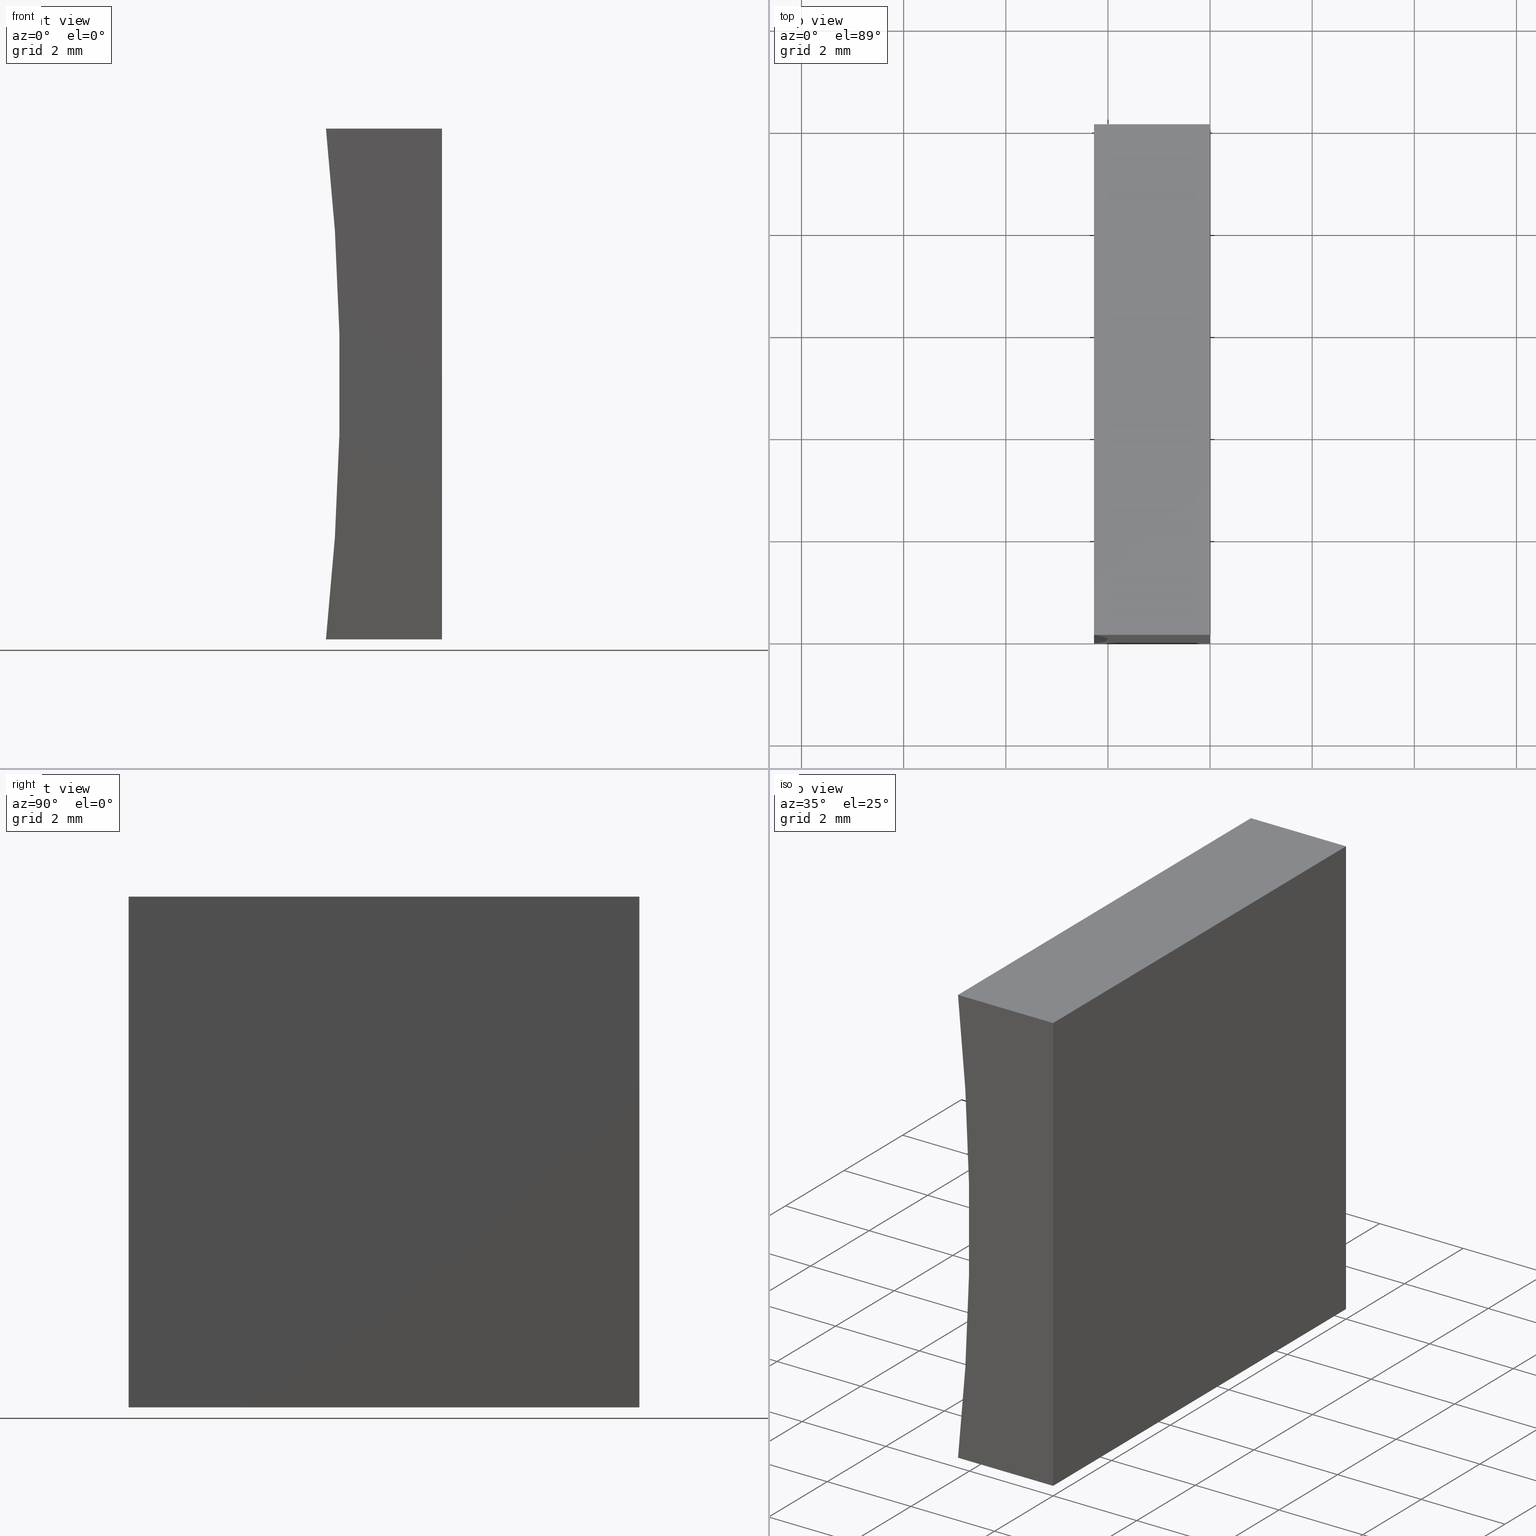
[diagram: canonical four-view strip — front | top / right | iso, engineering-drawing reading convention]
A machine part, canonical four-view strip (front | top / right | iso — engineering-drawing reading convention). The complete STEP part file that produces these views, byte-faithful:
ISO-10303-21;
HEADER;
FILE_DESCRIPTION (( 'STEP AP214' ),
    '1' );
FILE_NAME ('155470.STEP',
    '2019-07-03T05:59:42',
    ( 'user' ),
    ( '΢���й�' ),
    'SwSTEP 2.0',
    'SolidWorks 2016',
    '' );
FILE_SCHEMA (( 'AUTOMOTIVE_DESIGN' ));
ENDSEC;

DATA;
#1 = PRODUCT_DEFINITION ( 'δ֪', '', #22, #12 ) ;
#2 = ORIENTED_EDGE ( 'NONE', *, *, #37, .T. ) ;
#3 = CARTESIAN_POINT ( 'NONE',  ( -2.273443526304014000, 0.0000000000000000000, 8.673617379884035500E-016 ) ) ;
#4 = ORIENTED_EDGE ( 'NONE', *, *, #94, .T. ) ;
#5 = VECTOR ( 'NONE', #148, 1000.000000000000000 ) ;
#6 =( GEOMETRIC_REPRESENTATION_CONTEXT ( 3 ) GLOBAL_UNCERTAINTY_ASSIGNED_CONTEXT ( ( #86 ) ) GLOBAL_UNIT_ASSIGNED_CONTEXT ( ( #44, #66, #29 ) ) REPRESENTATION_CONTEXT ( 'NONE', 'WORKASPACE' ) );
#7 =( LENGTH_UNIT ( ) NAMED_UNIT ( * ) SI_UNIT ( .MILLI., .METRE. ) );
#8 = DIRECTION ( 'NONE',  ( 1.000000000000000000, 0.0000000000000000000, 0.0000000000000000000 ) ) ;
#9 = ORIENTED_EDGE ( 'NONE', *, *, #68, .F. ) ;
#10 = COLOUR_RGB ( '',1.000000000000000000, 1.000000000000000000, 1.000000000000000000 ) ;
#11 = ORIENTED_EDGE ( 'NONE', *, *, #166, .F. ) ;
#12 = PRODUCT_DEFINITION_CONTEXT ( 'detailed design', #69, 'design' ) ;
#13 = DIRECTION ( 'NONE',  ( -1.000000000000000000, 0.0000000000000000000, -7.630378568483681200E-016 ) ) ;
#14 = MECHANICAL_DESIGN_GEOMETRIC_PRESENTATION_REPRESENTATION (  '', ( #20 ), #194 ) ;
#15 = DIRECTION ( 'NONE',  ( -0.0000000000000000000, -1.000000000000000000, -0.0000000000000000000 ) ) ;
#16 = ORIENTED_EDGE ( 'NONE', *, *, #25, .F. ) ;
#17 =( NAMED_UNIT ( * ) SI_UNIT ( $, .STERADIAN. ) SOLID_ANGLE_UNIT ( ) );
#18 = ORIENTED_EDGE ( 'NONE', *, *, #25, .T. ) ;
#19 = VERTEX_POINT ( 'NONE', #63 ) ;
#20 = STYLED_ITEM ( 'NONE', ( #87 ), #126 ) ;
#21 = PRODUCT_CONTEXT ( 'NONE', #165, 'mechanical' ) ;
#22 = PRODUCT_DEFINITION_FORMATION_WITH_SPECIFIED_SOURCE ( '�κ�', '', #95, .NOT_KNOWN. ) ;
#23 = LINE ( 'NONE', #110, #163 ) ;
#24 = ORIENTED_EDGE ( 'NONE', *, *, #188, .T. ) ;
#25 = EDGE_CURVE ( 'NONE', #125, #127, #32, .T. ) ;
#26 =( NAMED_UNIT ( * ) PLANE_ANGLE_UNIT ( ) SI_UNIT ( $, .RADIAN. ) );
#27 = ORIENTED_EDGE ( 'NONE', *, *, #130, .F. ) ;
#28 = UNCERTAINTY_MEASURE_WITH_UNIT (LENGTH_MEASURE( 1.000000000000000100E-005 ), #103, 'distance_accuracy_value', 'NONE');
#29 =( NAMED_UNIT ( * ) SI_UNIT ( $, .STERADIAN. ) SOLID_ANGLE_UNIT ( ) );
#30 = DIRECTION ( 'NONE',  ( 6.123233995736766000E-017, 0.0000000000000000000, 1.000000000000000000 ) ) ;
#31 =( NAMED_UNIT ( * ) SI_UNIT ( $, .STERADIAN. ) SOLID_ANGLE_UNIT ( ) );
#32 = LINE ( 'NONE', #55, #5 ) ;
#33 = FILL_AREA_STYLE ('',( #90 ) ) ;
#34 = PRESENTATION_LAYER_ASSIGNMENT (  '', '', ( #20 ) ) ;
#35 = CARTESIAN_POINT ( 'NONE',  ( 0.0000000000000000000, 0.0000000000000000000, 0.0000000000000000000 ) ) ;
#36 = DIRECTION ( 'NONE',  ( 0.0000000000000000000, 1.000000000000000000, 0.0000000000000000000 ) ) ;
#37 = EDGE_CURVE ( 'NONE', #75, #157, #23, .T. ) ;
#38 = CARTESIAN_POINT ( 'NONE',  ( 0.0000000000000000000, 10.00000000000000000, 0.0000000000000000000 ) ) ;
#39 = CARTESIAN_POINT ( 'NONE',  ( -2.273443526304006900, 0.0000000000000000000, 10.00000000000000200 ) ) ;
#40 = CIRCLE ( 'NONE', #192, 45.85000000000000100 ) ;
#41 = EDGE_LOOP ( 'NONE', ( #142, #4, #2, #56 ) ) ;
#42 = COLOUR_RGB ( '',1.000000000000000000, 1.000000000000000000, 1.000000000000000000 ) ;
#43 = CARTESIAN_POINT ( 'NONE',  ( 6.123233995736766300E-016, 10.00000000000000000, 10.00000000000000000 ) ) ;
#44 =( LENGTH_UNIT ( ) NAMED_UNIT ( * ) SI_UNIT ( .MILLI., .METRE. ) );
#45 = FACE_OUTER_BOUND ( 'NONE', #41, .T. ) ;
#46 = EDGE_LOOP ( 'NONE', ( #113, #16, #11, #76 ) ) ;
#47 = ORIENTED_EDGE ( 'NONE', *, *, #109, .F. ) ;
#48 = DIRECTION ( 'NONE',  ( 1.000000000000000000, 0.0000000000000000000, 7.630378568483682100E-016 ) ) ;
#49 = SURFACE_STYLE_FILL_AREA ( #33 ) ;
#50 = ADVANCED_FACE ( 'NONE', ( #167 ), #99, .F. ) ;
#51 = CARTESIAN_POINT ( 'NONE',  ( -47.85000000000000100, 0.0000000000000000000, 5.000000000000004400 ) ) ;
#52 = PLANE ( 'NONE',  #139 ) ;
#53 = DIRECTION ( 'NONE',  ( 0.0000000000000000000, 0.0000000000000000000, 1.000000000000000000 ) ) ;
#54 = EDGE_CURVE ( 'NONE', #127, #190, #117, .T. ) ;
#55 = CARTESIAN_POINT ( 'NONE',  ( -2.273443526304014000, 10.00000000000000000, 8.673617379884035500E-016 ) ) ;
#56 = ORIENTED_EDGE ( 'NONE', *, *, #203, .T. ) ;
#57 = LINE ( 'NONE', #159, #82 ) ;
#58 = CARTESIAN_POINT ( 'NONE',  ( -47.85000000000000100, 10.00000000000000000, 5.000000000000004400 ) ) ;
#59 = ORIENTED_EDGE ( 'NONE', *, *, #188, .F. ) ;
#60 = DIRECTION ( 'NONE',  ( -6.123233995736766000E-017, -0.0000000000000000000, -1.000000000000000000 ) ) ;
#61 = LINE ( 'NONE', #141, #112 ) ;
#62 = AXIS2_PLACEMENT_3D ( 'NONE', #74, #199, #8 ) ;
#63 = CARTESIAN_POINT ( 'NONE',  ( 6.123233995736766300E-016, 0.0000000000000000000, 10.00000000000000000 ) ) ;
#64 = ORIENTED_EDGE ( 'NONE', *, *, #197, .T. ) ;
#65 = UNCERTAINTY_MEASURE_WITH_UNIT (LENGTH_MEASURE( 1.000000000000000100E-005 ), #7, 'distance_accuracy_value', 'NONE');
#66 =( NAMED_UNIT ( * ) PLANE_ANGLE_UNIT ( ) SI_UNIT ( $, .RADIAN. ) );
#67 = LINE ( 'NONE', #122, #119 ) ;
#68 = EDGE_CURVE ( 'NONE', #150, #184, #182, .T. ) ;
#69 = APPLICATION_CONTEXT ( 'automotive_design' ) ;
#70 = SURFACE_SIDE_STYLE ('',( #49 ) ) ;
#71 = ORIENTED_EDGE ( 'NONE', *, *, #146, .F. ) ;
#72 =( NAMED_UNIT ( * ) PLANE_ANGLE_UNIT ( ) SI_UNIT ( $, .RADIAN. ) );
#73 = CYLINDRICAL_SURFACE ( 'NONE', #200, 45.85000000000000100 ) ;
#74 = CARTESIAN_POINT ( 'NONE',  ( 0.0000000000000000000, 0.0000000000000000000, 0.0000000000000000000 ) ) ;
#75 = VERTEX_POINT ( 'NONE', #162 ) ;
#76 = ORIENTED_EDGE ( 'NONE', *, *, #68, .T. ) ;
#77 = VECTOR ( 'NONE', #191, 1000.000000000000000 ) ;
#78 = EDGE_LOOP ( 'NONE', ( #101, #59, #201, #18 ) ) ;
#79 = DIRECTION ( 'NONE',  ( 0.0000000000000000000, 0.0000000000000000000, -1.000000000000000000 ) ) ;
#80 = VECTOR ( 'NONE', #15, 1000.000000000000000 ) ;
#81 = DIRECTION ( 'NONE',  ( 0.0000000000000000000, 1.000000000000000000, 0.0000000000000000000 ) ) ;
#82 = VECTOR ( 'NONE', #60, 1000.000000000000000 ) ;
#83 = ADVANCED_FACE ( 'NONE', ( #91 ), #135, .F. ) ;
#84 = CARTESIAN_POINT ( 'NONE',  ( 0.0000000000000000000, 0.0000000000000000000, 0.0000000000000000000 ) ) ;
#85 = DIRECTION ( 'NONE',  ( 0.0000000000000000000, 0.0000000000000000000, 1.000000000000000000 ) ) ;
#86 = UNCERTAINTY_MEASURE_WITH_UNIT (LENGTH_MEASURE( 1.000000000000000100E-005 ), #44, 'distance_accuracy_value', 'NONE');
#87 = PRESENTATION_STYLE_ASSIGNMENT (( #149 ) ) ;
#88 = EDGE_LOOP ( 'NONE', ( #64, #9, #195, #147 ) ) ;
#89 = DIRECTION ( 'NONE',  ( -0.0000000000000000000, -1.000000000000000000, -0.0000000000000000000 ) ) ;
#90 = FILL_AREA_STYLE_COLOUR ( '', #42 ) ;
#91 = FACE_OUTER_BOUND ( 'NONE', #46, .T. ) ;
#92 = FILL_AREA_STYLE_COLOUR ( '', #10 ) ;
#93 = PRODUCT_DEFINITION_SHAPE ( 'NONE', 'NONE',  #1 ) ;
#94 = EDGE_CURVE ( 'NONE', #125, #75, #40, .T. ) ;
#95 = PRODUCT ( '155470', '155470', '', ( #21 ) ) ;
#96 = CARTESIAN_POINT ( 'NONE',  ( -47.85000000000000100, 10.00000000000000000, 5.000000000000004400 ) ) ;
#97 = CARTESIAN_POINT ( 'NONE',  ( 6.123233995736766300E-016, 10.00000000000000000, 10.00000000000000000 ) ) ;
#98 = DIRECTION ( 'NONE',  ( -6.123233995736766000E-017, -0.0000000000000000000, -1.000000000000000000 ) ) ;
#99 = PLANE ( 'NONE',  #121 ) ;
#100 = SHAPE_DEFINITION_REPRESENTATION ( #93, #102 ) ;
#101 = ORIENTED_EDGE ( 'NONE', *, *, #54, .T. ) ;
#102 = ADVANCED_BREP_SHAPE_REPRESENTATION ( '155470', ( #126, #62 ), #160 ) ;
#103 =( LENGTH_UNIT ( ) NAMED_UNIT ( * ) SI_UNIT ( .MILLI., .METRE. ) );
#104 = EDGE_LOOP ( 'NONE', ( #143, #27, #131, #24 ) ) ;
#105 = CARTESIAN_POINT ( 'NONE',  ( -47.85000000000000100, 10.00000000000000000, 5.000000000000004400 ) ) ;
#106 = VECTOR ( 'NONE', #13, 1000.000000000000000 ) ;
#107 = DIRECTION ( 'NONE',  ( 1.000000000000000000, -0.0000000000000000000, -7.630378568483683100E-016 ) ) ;
#108 = AXIS2_PLACEMENT_3D ( 'NONE', #51, #36, #114 ) ;
#109 = EDGE_CURVE ( 'NONE', #190, #19, #171, .T. ) ;
#110 = CARTESIAN_POINT ( 'NONE',  ( 6.123233995736766300E-016, 10.00000000000000000, 10.00000000000000000 ) ) ;
#111 = APPLICATION_PROTOCOL_DEFINITION ( 'draft international standard', 'automotive_design', 1998, #165 ) ;
#112 = VECTOR ( 'NONE', #98, 1000.000000000000000 ) ;
#113 = ORIENTED_EDGE ( 'NONE', *, *, #146, .T. ) ;
#114 = DIRECTION ( 'NONE',  ( 0.0000000000000000000, -0.0000000000000000000, 1.000000000000000000 ) ) ;
#115 = VECTOR ( 'NONE', #204, 1000.000000000000000 ) ;
#116 = FILL_AREA_STYLE ('',( #92 ) ) ;
#117 = CIRCLE ( 'NONE', #183, 45.85000000000000100 ) ;
#118 = PRODUCT_RELATED_PRODUCT_CATEGORY ( 'part', '', ( #95 ) ) ;
#119 = VECTOR ( 'NONE', #89, 1000.000000000000000 ) ;
#120 = ORIENTED_EDGE ( 'NONE', *, *, #54, .F. ) ;
#121 = AXIS2_PLACEMENT_3D ( 'NONE', #161, #137, #30 ) ;
#122 = CARTESIAN_POINT ( 'NONE',  ( -2.273443526304006900, 10.00000000000000000, 10.00000000000000200 ) ) ;
#123 = EDGE_LOOP ( 'NONE', ( #71, #186, #47, #120 ) ) ;
#124 = PRESENTATION_LAYER_ASSIGNMENT (  '', '', ( #173 ) ) ;
#125 = VERTEX_POINT ( 'NONE', #198 ) ;
#126 = MANIFOLD_SOLID_BREP ( '͹̨-����1', #145 ) ;
#127 = VERTEX_POINT ( 'NONE', #3 ) ;
#128 = LINE ( 'NONE', #97, #80 ) ;
#129 = DIRECTION ( 'NONE',  ( 1.000000000000000000, -0.0000000000000000000, -7.630378568483683100E-016 ) ) ;
#130 = EDGE_CURVE ( 'NONE', #157, #19, #128, .T. ) ;
#131 = ORIENTED_EDGE ( 'NONE', *, *, #37, .F. ) ;
#132 = VECTOR ( 'NONE', #129, 1000.000000000000000 ) ;
#133 = CARTESIAN_POINT ( 'NONE',  ( 0.0000000000000000000, 10.00000000000000000, 0.0000000000000000000 ) ) ;
#134 = FACE_OUTER_BOUND ( 'NONE', #123, .T. ) ;
#135 = PLANE ( 'NONE',  #185 ) ;
#136 = SURFACE_STYLE_USAGE ( .BOTH. , #138 ) ;
#137 = DIRECTION ( 'NONE',  ( -1.000000000000000000, 0.0000000000000000000, 6.123233995736766000E-017 ) ) ;
#138 = SURFACE_SIDE_STYLE ('',( #179 ) ) ;
#139 = AXIS2_PLACEMENT_3D ( 'NONE', #96, #81, #168 ) ;
#140 = DIRECTION ( 'NONE',  ( -0.0000000000000000000, -1.000000000000000000, -0.0000000000000000000 ) ) ;
#141 = CARTESIAN_POINT ( 'NONE',  ( 0.0000000000000000000, 10.00000000000000000, 0.0000000000000000000 ) ) ;
#142 = ORIENTED_EDGE ( 'NONE', *, *, #166, .T. ) ;
#143 = ORIENTED_EDGE ( 'NONE', *, *, #109, .T. ) ;
#144 = CARTESIAN_POINT ( 'NONE',  ( 6.123233995736766300E-016, 0.0000000000000000000, 10.00000000000000000 ) ) ;
#145 = CLOSED_SHELL ( 'NONE', ( #83, #187, #178, #50, #169, #158 ) ) ;
#146 = EDGE_CURVE ( 'NONE', #184, #127, #174, .T. ) ;
#147 = ORIENTED_EDGE ( 'NONE', *, *, #130, .T. ) ;
#148 = DIRECTION ( 'NONE',  ( -0.0000000000000000000, -1.000000000000000000, -0.0000000000000000000 ) ) ;
#149 = SURFACE_STYLE_USAGE ( .BOTH. , #70 ) ;
#150 = VERTEX_POINT ( 'NONE', #170 ) ;
#151 = FACE_OUTER_BOUND ( 'NONE', #78, .T. ) ;
#152 = CARTESIAN_POINT ( 'NONE',  ( -47.85000000000000100, 0.0000000000000000000, 5.000000000000004400 ) ) ;
#153 = DIRECTION ( 'NONE',  ( -0.0000000000000000000, -1.000000000000000000, -0.0000000000000000000 ) ) ;
#154 = DIRECTION ( 'NONE',  ( -1.000000000000000000, 0.0000000000000000000, 7.630378568483685100E-016 ) ) ;
#155 = PRESENTATION_STYLE_ASSIGNMENT (( #136 ) ) ;
#156 = DIRECTION ( 'NONE',  ( -7.630378568483685100E-016, 0.0000000000000000000, -1.000000000000000000 ) ) ;
#157 = VERTEX_POINT ( 'NONE', #202 ) ;
#158 = ADVANCED_FACE ( 'NONE', ( #134 ), #164, .F. ) ;
#159 = CARTESIAN_POINT ( 'NONE',  ( 0.0000000000000000000, 0.0000000000000000000, 0.0000000000000000000 ) ) ;
#160 =( GEOMETRIC_REPRESENTATION_CONTEXT ( 3 ) GLOBAL_UNCERTAINTY_ASSIGNED_CONTEXT ( ( #28 ) ) GLOBAL_UNIT_ASSIGNED_CONTEXT ( ( #103, #72, #17 ) ) REPRESENTATION_CONTEXT ( 'NONE', 'WORKASPACE' ) );
#161 = CARTESIAN_POINT ( 'NONE',  ( 0.0000000000000000000, 10.00000000000000000, 0.0000000000000000000 ) ) ;
#162 = CARTESIAN_POINT ( 'NONE',  ( -2.273443526304006900, 10.00000000000000000, 10.00000000000000200 ) ) ;
#163 = VECTOR ( 'NONE', #107, 1000.000000000000000 ) ;
#164 = PLANE ( 'NONE',  #108 ) ;
#165 = APPLICATION_CONTEXT ( 'automotive_design' ) ;
#166 = EDGE_CURVE ( 'NONE', #150, #125, #180, .T. ) ;
#167 = FACE_OUTER_BOUND ( 'NONE', #88, .T. ) ;
#168 = DIRECTION ( 'NONE',  ( 0.0000000000000000000, -0.0000000000000000000, 1.000000000000000000 ) ) ;
#169 = ADVANCED_FACE ( 'NONE', ( #45 ), #52, .T. ) ;
#170 = CARTESIAN_POINT ( 'NONE',  ( 0.0000000000000000000, 10.00000000000000000, 0.0000000000000000000 ) ) ;
#171 = LINE ( 'NONE', #144, #132 ) ;
#172 = PLANE ( 'NONE',  #177 ) ;
#173 = STYLED_ITEM ( 'NONE', ( #155 ), #102 ) ;
#174 = LINE ( 'NONE', #84, #77 ) ;
#175 = APPLICATION_PROTOCOL_DEFINITION ( 'draft international standard', 'automotive_design', 1998, #69 ) ;
#176 = CARTESIAN_POINT ( 'NONE',  ( 0.0000000000000000000, 10.00000000000000000, 0.0000000000000000000 ) ) ;
#177 = AXIS2_PLACEMENT_3D ( 'NONE', #43, #156, #154 ) ;
#178 = ADVANCED_FACE ( 'NONE', ( #196 ), #172, .F. ) ;
#179 = SURFACE_STYLE_FILL_AREA ( #116 ) ;
#180 = LINE ( 'NONE', #38, #106 ) ;
#181 = MECHANICAL_DESIGN_GEOMETRIC_PRESENTATION_REPRESENTATION (  '', ( #173 ), #6 ) ;
#182 = LINE ( 'NONE', #176, #115 ) ;
#183 = AXIS2_PLACEMENT_3D ( 'NONE', #152, #153, #85 ) ;
#184 = VERTEX_POINT ( 'NONE', #35 ) ;
#185 = AXIS2_PLACEMENT_3D ( 'NONE', #133, #193, #48 ) ;
#186 = ORIENTED_EDGE ( 'NONE', *, *, #197, .F. ) ;
#187 = ADVANCED_FACE ( 'NONE', ( #151 ), #73, .F. ) ;
#188 = EDGE_CURVE ( 'NONE', #75, #190, #67, .T. ) ;
#189 = DIRECTION ( 'NONE',  ( -0.0000000000000000000, -1.000000000000000000, -0.0000000000000000000 ) ) ;
#190 = VERTEX_POINT ( 'NONE', #39 ) ;
#191 = DIRECTION ( 'NONE',  ( -1.000000000000000000, 0.0000000000000000000, -7.630378568483681200E-016 ) ) ;
#192 = AXIS2_PLACEMENT_3D ( 'NONE', #105, #189, #53 ) ;
#193 = DIRECTION ( 'NONE',  ( -7.630378568483682100E-016, 0.0000000000000000000, 1.000000000000000000 ) ) ;
#194 =( GEOMETRIC_REPRESENTATION_CONTEXT ( 3 ) GLOBAL_UNCERTAINTY_ASSIGNED_CONTEXT ( ( #65 ) ) GLOBAL_UNIT_ASSIGNED_CONTEXT ( ( #7, #26, #31 ) ) REPRESENTATION_CONTEXT ( 'NONE', 'WORKASPACE' ) );
#195 = ORIENTED_EDGE ( 'NONE', *, *, #203, .F. ) ;
#196 = FACE_OUTER_BOUND ( 'NONE', #104, .T. ) ;
#197 = EDGE_CURVE ( 'NONE', #19, #184, #57, .T. ) ;
#198 = CARTESIAN_POINT ( 'NONE',  ( -2.273443526304014000, 10.00000000000000000, 8.673617379884035500E-016 ) ) ;
#199 = DIRECTION ( 'NONE',  ( 0.0000000000000000000, 0.0000000000000000000, 1.000000000000000000 ) ) ;
#200 = AXIS2_PLACEMENT_3D ( 'NONE', #58, #140, #79 ) ;
#201 = ORIENTED_EDGE ( 'NONE', *, *, #94, .F. ) ;
#202 = CARTESIAN_POINT ( 'NONE',  ( 6.123233995736766300E-016, 10.00000000000000000, 10.00000000000000000 ) ) ;
#203 = EDGE_CURVE ( 'NONE', #157, #150, #61, .T. ) ;
#204 = DIRECTION ( 'NONE',  ( -0.0000000000000000000, -1.000000000000000000, -0.0000000000000000000 ) ) ;
ENDSEC;
END-ISO-10303-21;
